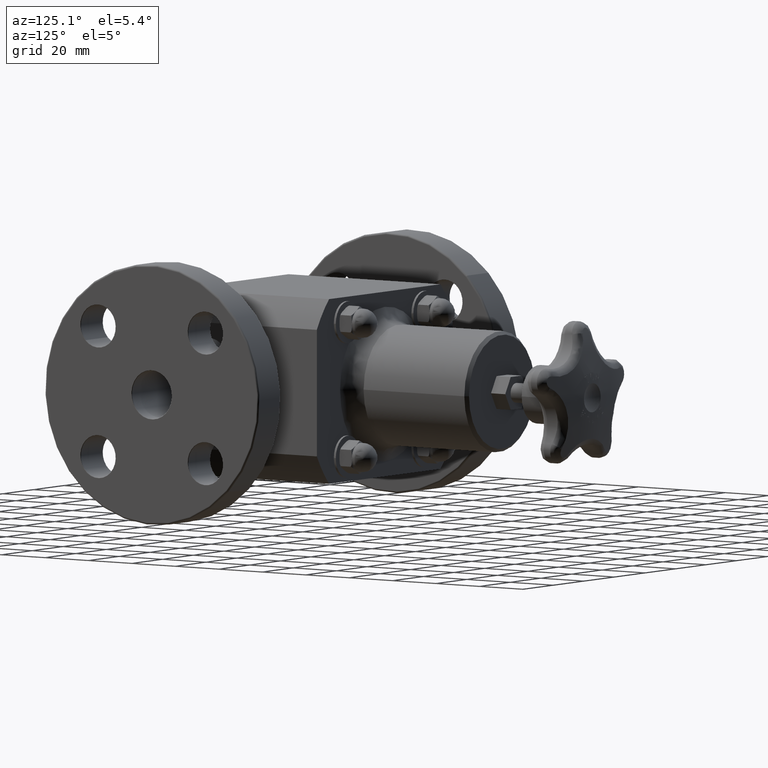
[diagram: clean part render]
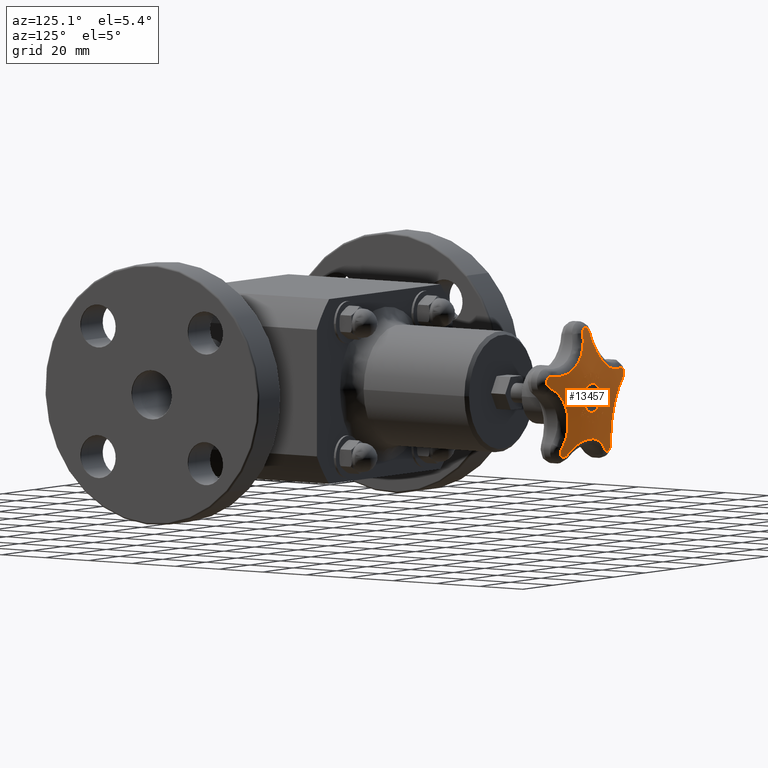
[diagram: same view with one face highlighted and labeled with its STEP entity id]
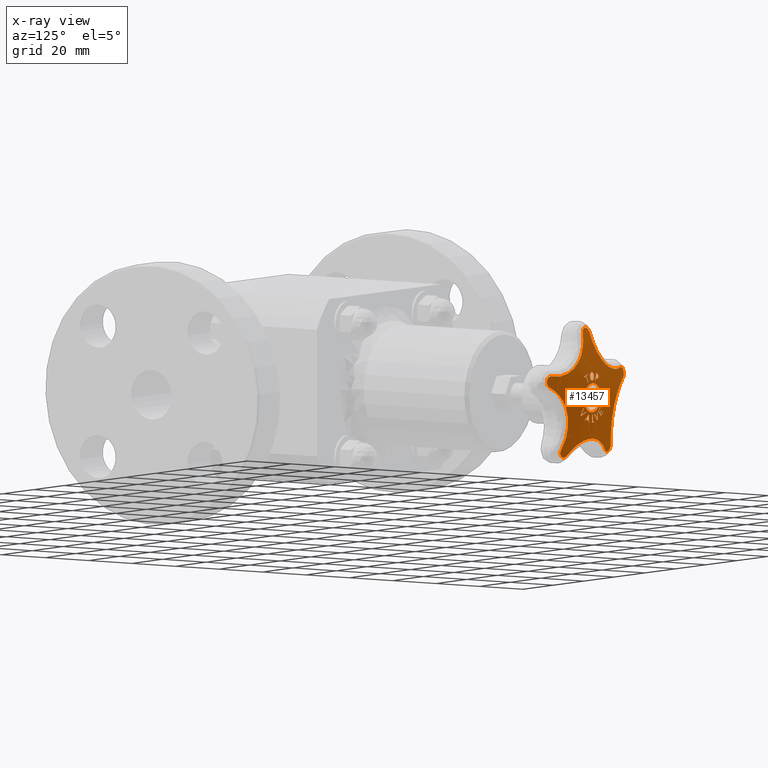
[diagram: x-ray of the same camera — body ghosted, the highlighted face saturated]
A machine part, auxiliary view. The second image highlights one B-rep face of the part: STEP entity #13457.
The next image is the same camera in x-ray: the body ghosted, the highlighted face saturated — about 0% of this face is hidden behind the body in this view.
In plain terms, the highlighted spherical surface has radius 101.6 mm.
Its self-contained STEP definition (entity closure, byte-faithful):
#10265=CARTESIAN_POINT('',(0.085862900185210,6.502578033837450,-0.334336098257463));
#10266=VERTEX_POINT('',#10265);
#10273=CARTESIAN_POINT('',(0.080862571524474,6.500070388788941,-0.364135061299997));
#10274=VERTEX_POINT('',#10273);
#10275=CARTESIAN_POINT('',(0.138077283113868,2.517500000000000,-0.023169658459773));
#10276=DIRECTION('',(0.986211736099962,-3.834945E-035,-0.165488403154721));
#10277=DIRECTION('',(0.165488403154721,2.285398E-034,0.986211736099962));
#10278=AXIS2_PLACEMENT_3D('',#10275,#10276,#10277);
#10279=CIRCLE('',#10278,3.997548977913186);
#10280=EDGE_CURVE('',#10274,#10266,#10279,.T.);
#10298=CARTESIAN_POINT('',(0.066931145986275,6.500560100352850,-0.361597094393902));
#10299=VERTEX_POINT('',#10298);
#10300=CARTESIAN_POINT('',(-0.061608234058828,2.517500000000000,-0.338180345563004));
#10301=DIRECTION('',(-0.179225881333302,0.0,-0.983807950496590));
#10302=DIRECTION('',(0.0,-1.0,0.0));
#10303=AXIS2_PLACEMENT_3D('',#10300,#10301,#10302);
#10304=CIRCLE('',#10303,3.985202438944732);
#10305=EDGE_CURVE('',#10299,#10274,#10304,.T.);
#10323=CARTESIAN_POINT('',(0.086359266902230,6.509345606544358,-0.240230577846814));
#10324=VERTEX_POINT('',#10323);
#10325=CARTESIAN_POINT('',(0.121696449326066,2.517500000000000,-0.019480935927100));
#10326=DIRECTION('',(-0.987428598717144,3.662935E-035,0.158065690254078));
#10327=DIRECTION('',(-0.158065690254078,-2.288218E-034,-0.987428598717144));
#10328=AXIS2_PLACEMENT_3D('',#10325,#10326,#10327);
#10329=CIRCLE('',#10328,3.998100857576862);
#10330=EDGE_CURVE('',#10324,#10299,#10329,.T.);
#10348=CARTESIAN_POINT('',(0.178491128782159,6.500560100243762,-0.321516958794137));
#10349=VERTEX_POINT('',#10348);
#10350=CARTESIAN_POINT('',(-0.081379549747352,2.517500000000000,-0.092237461550079));
#10351=DIRECTION('',(0.661592173204071,0.0,0.749863851879202));
#10352=DIRECTION('',(0.0,1.0,0.0));
#10353=AXIS2_PLACEMENT_3D('',#10350,#10351,#10352);
#10354=CIRCLE('',#10353,3.998108255108873);
#10355=EDGE_CURVE('',#10349,#10324,#10354,.T.);
#10391=CARTESIAN_POINT('',(0.169360113250167,6.500070388702393,-0.332340564889026));
#10392=VERTEX_POINT('',#10391);
#10393=CARTESIAN_POINT('',(0.262739148876333,2.517500000000000,-0.221652121134103));
#10394=DIRECTION('',(0.764340282334966,0.0,-0.644813099122609));
#10395=DIRECTION('',(0.0,-1.0,0.0));
#10396=AXIS2_PLACEMENT_3D('',#10393,#10394,#10395);
#10397=CIRCLE('',#10396,3.985202438627741);
#10398=EDGE_CURVE('',#10392,#10349,#10397,.T.);
#10416=CARTESIAN_POINT('',(0.146539084429404,6.502578033778149,-0.312536976105990));
#10417=VERTEX_POINT('',#10416);
#10418=CARTESIAN_POINT('',(-0.091762441742962,2.517500000000000,-0.105744133077216));
#10419=DIRECTION('',(-0.655409775395539,0.0,-0.755273477831686));
#10420=DIRECTION('',(0.0,-1.0,0.0));
#10421=AXIS2_PLACEMENT_3D('',#10418,#10419,#10420);
#10422=CIRCLE('',#10421,3.997548978137118);
#10423=EDGE_CURVE('',#10417,#10392,#10422,.T.);
#10441=CARTESIAN_POINT('',(0.116200988857743,2.517500000000000,-0.323436538421051));
#10442=DIRECTION('',(0.338111065893150,0.0,-0.941106214579735));
#10443=DIRECTION('',(0.0,-1.0,0.0));
#10444=AXIS2_PLACEMENT_3D('',#10441,#10442,#10443);
#10445=CIRCLE('',#10444,3.985208418113498);
#10446=EDGE_CURVE('',#10266,#10417,#10445,.T.);
#10476=CARTESIAN_POINT('',(0.037834369669133,6.508204436490725,0.269901206082852));
#10477=VERTEX_POINT('',#10476);
#10484=CARTESIAN_POINT('',(-0.000813251585510,6.509463335806678,0.253432563411025));
#10485=VERTEX_POINT('',#10484);
#10486=CARTESIAN_POINT('',(-0.000813251585510,6.509463335806678,0.253432563411025));
#10487=CARTESIAN_POINT('',(0.004822604549693,6.509463267161417,0.253451729844247));
#10488=CARTESIAN_POINT('',(0.010434056143418,6.509408968571550,0.254137147028971));
#10489=CARTESIAN_POINT('',(0.019829419967588,6.509191776701513,0.256945437338924));
#10490=CARTESIAN_POINT('',(0.023603879105451,6.509063271092423,0.258616838560289));
#10491=CARTESIAN_POINT('',(0.031162797321007,6.508707503911848,0.263275608997046));
#10492=CARTESIAN_POINT('',(0.034718544485055,6.508475224151669,0.266334166676061));
#10493=CARTESIAN_POINT('',(0.037834369669133,6.508204436490725,0.269901206082852));
#10494=B_SPLINE_CURVE_WITH_KNOTS('',3,(#10486,#10487,#10488,#10489,#10490,#10491,#10492,#10493),.UNSPECIFIED.,.F.,.U.,(4,2,2,4),(0.0,0.042945472093289,0.074729953679080,0.111130521126663),.UNSPECIFIED.);
#10495=EDGE_CURVE('',#10485,#10477,#10494,.T.);
#10528=CARTESIAN_POINT('',(0.051972176469609,6.504648590963244,0.316140801626154));
#10529=VERTEX_POINT('',#10528);
#10536=CARTESIAN_POINT('',(0.037834369669133,6.508204436490725,0.269901206082852));
#10537=CARTESIAN_POINT('',(0.041442739555291,6.507886429832899,0.274097371770597));
#10538=CARTESIAN_POINT('',(0.044216393332117,6.507526143654532,0.278867364485766));
#10539=CARTESIAN_POINT('',(0.051175872144373,6.506247534047898,0.295695352673442));
#10540=CARTESIAN_POINT('',(0.052000310715352,6.505304176149834,0.307867975918427));
#10541=CARTESIAN_POINT('',(0.051972176469609,6.504648590963244,0.316140801626154));
#10542=B_SPLINE_CURVE_WITH_KNOTS('',3,(#10536,#10537,#10538,#10539,#10540,#10541),.UNSPECIFIED.,.F.,.U.,(4,2,4),(0.0,0.042240697270331,0.139117363804144),.UNSPECIFIED.);
#10543=EDGE_CURVE('',#10477,#10529,#10542,.T.);
#10569=CARTESIAN_POINT('',(0.037422621985947,6.500875481075145,0.362380082417699));
#10570=VERTEX_POINT('',#10569);
#10577=CARTESIAN_POINT('',(0.051972176469609,6.504648590963244,0.316140801626154));
#10578=CARTESIAN_POINT('',(0.051955724861657,6.504265235014526,0.320978368143261));
#10579=CARTESIAN_POINT('',(0.051649887753166,6.503873160763518,0.325860197870603));
#10580=CARTESIAN_POINT('',(0.050134657362983,6.503046460787355,0.336059631335726));
#10581=CARTESIAN_POINT('',(0.048942330808374,6.502679768741239,0.340537076610657));
#10582=CARTESIAN_POINT('',(0.045132529339031,6.501814489793274,0.351068251626343));
#10583=CARTESIAN_POINT('',(0.041865078415884,6.501314249290124,0.357098260899483));
#10584=CARTESIAN_POINT('',(0.037422621985947,6.500875481075145,0.362380082417699));
#10585=B_SPLINE_CURVE_WITH_KNOTS('',3,(#10577,#10578,#10579,#10580,#10581,#10582,#10583,#10584),.UNSPECIFIED.,.F.,.U.,(4,2,2,4),(0.0,0.036978033263811,0.078812994269673,0.145814753845857),.UNSPECIFIED.);
#10586=EDGE_CURVE('',#10529,#10570,#10585,.T.);
#10614=CARTESIAN_POINT('',(-0.001238542349022,6.499552846207735,0.378488567887761));
#10615=VERTEX_POINT('',#10614);
#10622=CARTESIAN_POINT('',(0.037422621985947,6.500875481075145,0.362380082417699));
#10623=CARTESIAN_POINT('',(0.034954443929450,6.500644692501275,0.365171856276013));
#10624=CARTESIAN_POINT('',(0.032197988751061,6.500440415363388,0.367645041378230));
#10625=CARTESIAN_POINT('',(0.025433171661516,6.500054380883789,0.372335971569167));
#10626=CARTESIAN_POINT('',(0.021382576080450,6.499892027163672,0.374321631798851));
#10627=CARTESIAN_POINT('',(0.014161922593872,6.499697132621297,0.376716303028089));
#10628=CARTESIAN_POINT('',(0.011126297743766,6.499640822220748,0.377412789087582));
#10629=CARTESIAN_POINT('',(0.004967186895549,6.499568654773592,0.378304358121797));
#10630=CARTESIAN_POINT('',(0.001864839243269,6.499552808314178,0.378499121875412));
#10631=CARTESIAN_POINT('',(-0.001238542349022,6.499552846207735,0.378488567887761));
#10632=B_SPLINE_CURVE_WITH_KNOTS('',3,(#10622,#10623,#10624,#10625,#10626,#10627,#10628,#10629,#10630,#10631),.UNSPECIFIED.,.F.,.U.,(4,2,2,2,4),(0.0,0.028449418287417,0.062797366334246,0.086669104210055,0.110412733579470),.UNSPECIFIED.);
#10633=EDGE_CURVE('',#10570,#10615,#10632,.T.);
#10819=CARTESIAN_POINT('',(-0.039886494311880,6.500875481072099,0.362117169387378));
#10820=VERTEX_POINT('',#10819);
#10827=CARTESIAN_POINT('',(-0.001238542349022,6.499552846207735,0.378488567887761));
#10828=CARTESIAN_POINT('',(-0.006745334190295,6.499552913447912,0.378469840376704));
#10829=CARTESIAN_POINT('',(-0.012222719771290,6.499603190919958,0.377803010782852));
#10830=CARTESIAN_POINT('',(-0.022169110236763,6.499836259202795,0.374873454632416));
#10831=CARTESIAN_POINT('',(-0.025880772573739,6.499983982792515,0.373045650941543));
#10832=CARTESIAN_POINT('',(-0.032976239086434,6.500326456239561,0.368822005397033));
#10833=CARTESIAN_POINT('',(-0.036677483482774,6.500576120274295,0.365763676003977));
#10834=CARTESIAN_POINT('',(-0.039886494311880,6.500875481072101,0.362117169387378));
#10835=B_SPLINE_CURVE_WITH_KNOTS('',3,(#10827,#10828,#10829,#10830,#10831,#10832,#10833,#10834),.UNSPECIFIED.,.F.,.U.,(4,2,2,4),(0.0,0.041961996486355,0.079020325656231,0.132098515306939),.UNSPECIFIED.);
#10836=EDGE_CURVE('',#10615,#10820,#10835,.T.);
#10862=CARTESIAN_POINT('',(-0.054121214575585,6.504648590959069,0.315779998964419));
#10863=VERTEX_POINT('',#10862);
#10870=CARTESIAN_POINT('',(-0.039886494311880,6.500875481072099,0.362117169387378));
#10871=CARTESIAN_POINT('',(-0.043384531614640,6.501215540252460,0.357991135129826));
#10872=CARTESIAN_POINT('',(-0.046110522559888,6.501601304155912,0.353327026506887));
#10873=CARTESIAN_POINT('',(-0.049655140330850,6.502287322165349,0.344989572698873));
#10874=CARTESIAN_POINT('',(-0.051408401706369,6.502680648419752,0.340203251638015));
#10875=CARTESIAN_POINT('',(-0.053714336300565,6.503694761028934,0.327721858865083));
#10876=CARTESIAN_POINT('',(-0.054141415064118,6.504177878462816,0.321719917253611));
#10877=CARTESIAN_POINT('',(-0.054121214575585,6.504648590959070,0.315779998964419));
#10878=B_SPLINE_CURVE_WITH_KNOTS('',3,(#10870,#10871,#10872,#10873,#10874,#10875,#10876,#10877),.UNSPECIFIED.,.F.,.U.,(4,2,2,4),(0.0,0.041300163745689,0.069239721804254,0.093823977580811),.UNSPECIFIED.);
#10879=EDGE_CURVE('',#10820,#10863,#10878,.T.);
#10905=CARTESIAN_POINT('',(-0.039571990800138,6.508205379604829,0.269637962344318));
#10906=VERTEX_POINT('',#10905);
#10913=CARTESIAN_POINT('',(-0.054121214575585,6.504648590959070,0.315779998964419));
#10914=CARTESIAN_POINT('',(-0.054104973183963,6.505027048439477,0.311004246190809));
#10915=CARTESIAN_POINT('',(-0.053791585087129,6.505402200783876,0.306211457940531));
#10916=CARTESIAN_POINT('',(-0.052375519715095,6.506143410979319,0.296655576028873));
#10917=CARTESIAN_POINT('',(-0.051258684496629,6.506507467278865,0.291916990166382));
#10918=CARTESIAN_POINT('',(-0.047377403862622,6.507352193214818,0.280860112488070));
#10919=CARTESIAN_POINT('',(-0.044132654634130,6.507811607413358,0.274796561836271));
#10920=CARTESIAN_POINT('',(-0.039571990800138,6.508205379604829,0.269637962344318));
#10921=B_SPLINE_CURVE_WITH_KNOTS('',3,(#10913,#10914,#10915,#10916,#10917,#10918,#10919,#10920),.UNSPECIFIED.,.F.,.U.,(4,2,2,4),(0.0,0.036505533163791,0.073822024429602,0.126837533468264),.UNSPECIFIED.);
#10922=EDGE_CURVE('',#10863,#10906,#10921,.T.);
#10949=CARTESIAN_POINT('',(-0.039571990800138,6.508205379604828,0.269637962344318));
#10950=CARTESIAN_POINT('',(-0.036994618978134,6.508426649193219,0.266741374653484));
#10951=CARTESIAN_POINT('',(-0.034125944551200,6.508624226597591,0.264155087526020));
#10952=CARTESIAN_POINT('',(-0.028127958870894,6.508941902899274,0.260022999604724));
#10953=CARTESIAN_POINT('',(-0.024119800176987,6.509119835051820,0.257727462092390));
#10954=CARTESIAN_POINT('',(-0.015614631027444,6.509330482346445,0.255058899401250));
#10955=CARTESIAN_POINT('',(-0.012615830697533,6.509382732516450,0.254406267976287));
#10956=CARTESIAN_POINT('',(-0.006666959610789,6.509448427235687,0.253597873925736));
#10957=CARTESIAN_POINT('',(-0.003741704705224,6.509463371475511,0.253422604320576));
#10958=CARTESIAN_POINT('',(-0.000813251586146,6.509463335806677,0.253432563411023));
#10959=B_SPLINE_CURVE_WITH_KNOTS('',3,(#10949,#10950,#10951,#10952,#10953,#10954,#10955,#10956,#10957,#10958),.UNSPECIFIED.,.F.,.U.,(4,2,2,2,4),(0.0,0.029592715149351,0.055552496815722,0.069221283901438,0.082236559754027),.UNSPECIFIED.);
#10960=EDGE_CURVE('',#10906,#10485,#10959,.T.);
#11234=CARTESIAN_POINT('',(-0.247118300170065,6.504930202010447,-0.198325313099392));
#11235=VERTEX_POINT('',#11234);
#11242=CARTESIAN_POINT('',(-0.207827658530653,6.505059962457522,-0.237008882018031));
#11243=VERTEX_POINT('',#11242);
#11244=CARTESIAN_POINT('',(-0.220785948703935,2.517500000000000,-0.224250808083116));
#11245=DIRECTION('',(0.701580297701931,0.0,0.712590405405847));
#11246=DIRECTION('',(0.0,1.0,0.0));
#11247=AXIS2_PLACEMENT_3D('',#11244,#11245,#11246);
#11248=CIRCLE('',#11247,3.987601426914302);
#11249=EDGE_CURVE('',#11243,#11235,#11248,.T.);
#11267=CARTESIAN_POINT('',(-0.176580613442933,6.508324840990898,-0.205271467783727));
#11268=VERTEX_POINT('',#11267);
#11269=CARTESIAN_POINT('',(0.012958290173282,2.517500000000000,-0.012758073934915));
#11270=DIRECTION('',(-0.712590405405847,0.0,0.701580297701931));
#11271=DIRECTION('',(0.0,1.0,0.0));
#11272=AXIS2_PLACEMENT_3D('',#11269,#11270,#11271);
#11273=CIRCLE('',#11272,3.999958664069575);
#11274=EDGE_CURVE('',#11268,#11243,#11273,.T.);
#11292=CARTESIAN_POINT('',(-0.218712377317294,6.508156275729467,-0.163790674304833));
#11293=VERTEX_POINT('',#11292);
#11294=CARTESIAN_POINT('',(-0.189538903616215,2.517500000000000,-0.192513393848812));
#11295=DIRECTION('',(-0.701580297701931,0.0,-0.712590405405848));
#11296=DIRECTION('',(0.0,-1.0,0.0));
#11297=AXIS2_PLACEMENT_3D('',#11294,#11295,#11296);
#11298=CIRCLE('',#11297,3.990866271526118);
#11299=EDGE_CURVE('',#11293,#11268,#11298,.T.);
#11317=CARTESIAN_POINT('',(-0.208751528883217,6.509092069880929,-0.153673507321845));
#11318=VERTEX_POINT('',#11317);
#11319=CARTESIAN_POINT('',(-0.029173473701079,2.517500000000000,0.028722719543979));
#11320=DIRECTION('',(-0.712590405405848,0.0,0.701580297701931));
#11321=DIRECTION('',(0.0,1.0,0.0));
#11322=AXIS2_PLACEMENT_3D('',#11319,#11320,#11321);
#11323=CIRCLE('',#11322,3.999790483739644);
#11324=EDGE_CURVE('',#11318,#11293,#11323,.T.);
#11342=CARTESIAN_POINT('',(-0.155255276069062,6.509156082813489,-0.206343199041756));
#11343=VERTEX_POINT('',#11342);
#11344=CARTESIAN_POINT('',(-0.179578055182139,2.517500000000000,-0.182396226865824));
#11345=DIRECTION('',(0.701580297701931,0.0,0.712590405405847));
#11346=DIRECTION('',(0.0,1.0,0.0));
#11347=AXIS2_PLACEMENT_3D('',#11344,#11345,#11346);
#11348=CIRCLE('',#11347,3.991802016448476);
#11349=EDGE_CURVE('',#11343,#11318,#11348,.T.);
#11367=CARTESIAN_POINT('',(-0.239444912833791,6.499646073155508,-0.291854048747284));
#11368=VERTEX_POINT('',#11367);
#11369=CARTESIAN_POINT('',(0.024322779113076,2.517500000000000,-0.023946972175932));
#11370=DIRECTION('',(0.712590405405848,0.0,-0.701580297701931));
#11371=DIRECTION('',(0.0,-1.0,0.0));
#11372=AXIS2_PLACEMENT_3D('',#11369,#11370,#11371);
#11373=CIRCLE('',#11372,3.999854365466301);
#11374=EDGE_CURVE('',#11368,#11343,#11373,.T.);
#11392=CARTESIAN_POINT('',(-0.292941165647946,6.499581907347238,-0.239184357027373));
#11393=VERTEX_POINT('',#11392);
#11394=CARTESIAN_POINT('',(-0.263767691946868,2.517500000000000,-0.267907076571351));
#11395=DIRECTION('',(-0.701580297701931,0.0,-0.712590405405847));
#11396=DIRECTION('',(0.0,-1.0,0.0));
#11397=AXIS2_PLACEMENT_3D('',#11394,#11395,#11396);
#11398=CIRCLE('',#11397,3.982292355290859);
#11399=EDGE_CURVE('',#11393,#11368,#11398,.T.);
#11417=CARTESIAN_POINT('',(-0.282980317213870,6.500896837187415,-0.229067190044385));
#11418=VERTEX_POINT('',#11417);
#11419=CARTESIAN_POINT('',(-0.029173473701079,2.517500000000000,0.028722719543979));
#11420=DIRECTION('',(-0.712590405405848,0.0,0.701580297701931));
#11421=DIRECTION('',(0.0,1.0,0.0));
#11422=AXIS2_PLACEMENT_3D('',#11419,#11420,#11421);
#11423=CIRCLE('',#11422,3.999790483739644);
#11424=EDGE_CURVE('',#11418,#11393,#11423,.T.);
#11442=CARTESIAN_POINT('',(-0.240848553339509,6.501065709633236,-0.270547983523279));
#11443=VERTEX_POINT('',#11442);
#11444=CARTESIAN_POINT('',(-0.253806843512791,2.517500000000000,-0.257789909588363));
#11445=DIRECTION('',(0.701580297701931,0.0,0.712590405405847));
#11446=DIRECTION('',(0.0,1.0,0.0));
#11447=AXIS2_PLACEMENT_3D('',#11444,#11445,#11446);
#11448=CIRCLE('',#11447,3.983607215665281);
#11449=EDGE_CURVE('',#11443,#11418,#11448,.T.);
#11467=CARTESIAN_POINT('',(-0.217788506964729,6.503914037971874,-0.247126049001019));
#11468=VERTEX_POINT('',#11467);
#11469=CARTESIAN_POINT('',(0.012958290173281,2.517500000000000,-0.012758073934915));
#11470=DIRECTION('',(-0.712590405405848,0.0,0.701580297701930));
#11471=DIRECTION('',(0.0,1.0,0.0));
#11472=AXIS2_PLACEMENT_3D('',#11469,#11470,#11471);
#11473=CIRCLE('',#11472,3.999958664069575);
#11474=EDGE_CURVE('',#11468,#11443,#11473,.T.);
#11492=CARTESIAN_POINT('',(-0.257079148604141,6.503784240222976,-0.208442480082380));
#11493=VERTEX_POINT('',#11492);
#11494=CARTESIAN_POINT('',(-0.230746797138011,2.517500000000000,-0.234367975066104));
#11495=DIRECTION('',(-0.701580297701931,0.0,-0.712590405405848));
#11496=DIRECTION('',(0.0,-1.0,0.0));
#11497=AXIS2_PLACEMENT_3D('',#11494,#11495,#11496);
#11498=CIRCLE('',#11497,3.986455514347798);
#11499=EDGE_CURVE('',#11493,#11468,#11498,.T.);
#11517=CARTESIAN_POINT('',(-0.026332351466130,2.517500000000000,0.025925494983725));
#11518=DIRECTION('',(-0.712590405405848,0.0,0.701580297701931));
#11519=DIRECTION('',(0.0,1.0,0.0));
#11520=AXIS2_PLACEMENT_3D('',#11517,#11518,#11519);
#11521=CIRCLE('',#11520,3.999829305854953);
#11522=EDGE_CURVE('',#11235,#11493,#11521,.T.);
#11544=CARTESIAN_POINT('',(0.104679989358764,6.499501420719623,0.364289425065761));
#11545=VERTEX_POINT('',#11544);
#11552=CARTESIAN_POINT('',(0.193260657033255,6.499499064924952,0.326088585172621));
#11553=VERTEX_POINT('',#11552);
#11554=CARTESIAN_POINT('',(0.148881029224559,2.517500000000000,0.345227513574776));
#11555=DIRECTION('',(0.395999965100261,0.0,0.918250525532435));
#11556=DIRECTION('',(0.0,1.0,0.0));
#11557=AXIS2_PLACEMENT_3D('',#11554,#11555,#11556);
#11558=CIRCLE('',#11557,3.982292355290859);
#11559=EDGE_CURVE('',#11553,#11545,#11558,.T.);
#11584=CARTESIAN_POINT('',(0.099057688326104,6.500816377129186,0.351252350992701));
#11585=VERTEX_POINT('',#11584);
#11592=CARTESIAN_POINT('',(-0.044201039865794,2.517500000000000,0.019061911490985));
#11593=DIRECTION('',(-0.918250525532435,9.176705E-035,0.395999965100260));
#11594=DIRECTION('',(-0.395999965100260,-2.127908E-034,-0.918250525532435));
#11595=AXIS2_PLACEMENT_3D('',#11592,#11593,#11594);
#11596=CIRCLE('',#11595,3.999710353463748);
#11597=EDGE_CURVE('',#11545,#11585,#11596,.T.);
#11617=CARTESIAN_POINT('',(0.136025829875741,6.501099428197435,0.335309661763104));
#11618=VERTEX_POINT('',#11617);
#11625=CARTESIAN_POINT('',(0.143258728191899,2.517500000000000,0.332190439501716));
#11626=DIRECTION('',(-0.395999965100261,0.0,-0.918250525532434));
#11627=DIRECTION('',(0.0,-1.0,0.0));
#11628=AXIS2_PLACEMENT_3D('',#11625,#11626,#11627);
#11629=CIRCLE('',#11628,3.983607215665281);
#11630=EDGE_CURVE('',#11585,#11618,#11629,.T.);
#11650=CARTESIAN_POINT('',(0.094128134509071,6.509294244967611,0.238156671410437));
#11651=VERTEX_POINT('',#11650);
#11658=CARTESIAN_POINT('',(-0.007232898316159,2.517500000000000,0.003119222261389));
#11659=DIRECTION('',(-0.918250525532435,9.176705E-035,0.395999965100261));
#11660=DIRECTION('',(-0.395999965100261,-2.127908E-034,-0.918250525532435));
#11661=AXIS2_PLACEMENT_3D('',#11658,#11659,#11660);
#11662=CIRCLE('',#11661,3.999992244446786);
#11663=EDGE_CURVE('',#11618,#11651,#11662,.T.);
#11683=CARTESIAN_POINT('',(0.108772519084289,6.509293856457106,0.231841209976490));
#11684=VERTEX_POINT('',#11683);
#11691=CARTESIAN_POINT('',(0.101361032825229,2.517500000000000,0.235037449149048));
#11692=DIRECTION('',(-0.395999965100260,0.0,-0.918250525532435));
#11693=DIRECTION('',(0.0,-1.0,0.0));
#11694=AXIS2_PLACEMENT_3D('',#11691,#11692,#11693);
#11695=CIRCLE('',#11694,3.991802016448476);
#11696=EDGE_CURVE('',#11651,#11684,#11695,.T.);
#11716=CARTESIAN_POINT('',(0.150670214450959,6.501099038887709,0.328994200329158));
#11717=VERTEX_POINT('',#11716);
#11724=CARTESIAN_POINT('',(0.007411486259060,2.517500000000000,-0.003196239172558));
#11725=DIRECTION('',(0.918250525532434,-9.176705E-035,-0.395999965100261));
#11726=DIRECTION('',(0.395999965100261,2.127908E-034,0.918250525532434));
#11727=AXIS2_PLACEMENT_3D('',#11724,#11725,#11726);
#11728=CIRCLE('',#11727,3.999991856732535);
#11729=EDGE_CURVE('',#11684,#11717,#11728,.T.);
#11749=CARTESIAN_POINT('',(0.187638356000595,6.500814022112200,0.313051511099561));
#11750=VERTEX_POINT('',#11749);
#11757=CARTESIAN_POINT('',(0.143258728191899,2.517500000000000,0.332190439501716));
#11758=DIRECTION('',(-0.395999965100261,0.0,-0.918250525532435));
#11759=DIRECTION('',(0.0,-1.0,0.0));
#11760=AXIS2_PLACEMENT_3D('',#11757,#11758,#11759);
#11761=CIRCLE('',#11760,3.983607215665281);
#11762=EDGE_CURVE('',#11717,#11750,#11761,.T.);
#11781=CARTESIAN_POINT('',(0.044379627808697,2.517500000000000,-0.019138928402155));
#11782=DIRECTION('',(0.918250525532435,-9.176705E-035,-0.395999965100259));
#11783=DIRECTION('',(0.395999965100259,2.127908E-034,0.918250525532435));
#11784=AXIS2_PLACEMENT_3D('',#11781,#11782,#11783);
#11785=CIRCLE('',#11784,3.999708008099489);
#11786=EDGE_CURVE('',#11750,#11553,#11785,.T.);
#11885=CARTESIAN_POINT('',(-0.132776476717596,6.509152316888535,-0.221545002897484));
#11886=VERTEX_POINT('',#11885);
#11893=CARTESIAN_POINT('',(-0.141106922486270,6.501658741024817,-0.326447488490870));
#11894=VERTEX_POINT('',#11893);
#11895=CARTESIAN_POINT('',(-0.114461481346885,2.517500000000000,0.009089538322841));
#11896=DIRECTION('',(0.996861755361221,-1.834463E-035,-0.079162116559279));
#11897=DIRECTION('',(0.079162116559279,2.310078E-034,0.996861755361221));
#11898=AXIS2_PLACEMENT_3D('',#11895,#11896,#11897);
#11899=CIRCLE('',#11898,3.998351654067081);
#11900=EDGE_CURVE('',#11894,#11886,#11899,.T.);
#11918=CARTESIAN_POINT('',(-0.071391562909479,6.509171847508763,-0.247909472492114));
#11919=VERTEX_POINT('',#11918);
#11920=CARTESIAN_POINT('',(0.083150511259561,2.517500000000000,-0.073809704991097));
#11921=DIRECTION('',(-0.747864056465855,0.0,0.663851905959784));
#11922=DIRECTION('',(0.0,1.0,0.0));
#11923=AXIS2_PLACEMENT_3D('',#11920,#11921,#11922);
#11924=CIRCLE('',#11923,3.998454466406539);
#11925=EDGE_CURVE('',#11919,#11894,#11924,.T.);
#11943=CARTESIAN_POINT('',(-0.055754940032594,6.508998131883168,-0.254625312636306));
#11944=VERTEX_POINT('',#11943);
#11945=CARTESIAN_POINT('',(-0.101011795140334,2.517500000000000,-0.235187752062933));
#11946=DIRECTION('',(0.394635554071923,0.0,0.918837732933485));
#11947=DIRECTION('',(0.0,1.0,0.0));
#11948=AXIS2_PLACEMENT_3D('',#11945,#11946,#11947);
#11949=CIRCLE('',#11948,3.991802016448476);
#11950=EDGE_CURVE('',#11944,#11919,#11949,.T.);
#11968=CARTESIAN_POINT('',(-0.140907158403200,6.499784076964297,-0.348652696916783));
#11969=VERTEX_POINT('',#11968);
#11970=CARTESIAN_POINT('',(0.096057099062329,2.517500000000000,-0.086990350077203));
#11971=DIRECTION('',(0.741222642945153,0.0,-0.671259259590065));
#11972=DIRECTION('',(0.0,-1.0,0.0));
#11973=AXIS2_PLACEMENT_3D('',#11970,#11971,#11972);
#11974=CIRCLE('',#11973,3.997900162924680);
#11975=EDGE_CURVE('',#11969,#11944,#11974,.T.);
#11993=CARTESIAN_POINT('',(-0.156722485541535,6.499781975401069,-0.341860104313799));
#11994=VERTEX_POINT('',#11993);
#11995=CARTESIAN_POINT('',(-0.148368062214240,2.517500000000000,-0.345448281377657));
#11996=DIRECTION('',(-0.394635554071924,0.0,-0.918837732933484));
#11997=DIRECTION('',(0.0,-1.0,0.0));
#11998=AXIS2_PLACEMENT_3D('',#11995,#11996,#11997);
#11999=CIRCLE('',#11998,3.982292355290859);
#12000=EDGE_CURVE('',#11994,#11969,#11999,.T.);
#12018=CARTESIAN_POINT('',(-0.147698282548681,6.508978628851239,-0.215136172588455));
#12019=VERTEX_POINT('',#12018);
#12020=CARTESIAN_POINT('',(-0.131710197155650,2.517500000000000,0.009379282501569));
#12021=DIRECTION('',(-0.997474063033574,1.646052E-035,0.071031637847470));
#12022=DIRECTION('',(-0.071031637847470,-2.311497E-034,-0.997474063033574));
#12023=AXIS2_PLACEMENT_3D('',#12020,#12021,#12022);
#12024=CIRCLE('',#12023,3.997819962557716);
#12025=EDGE_CURVE('',#12019,#11994,#12024,.T.);
#12043=CARTESIAN_POINT('',(-0.101011795140334,2.517500000000000,-0.235187752062933));
#12044=DIRECTION('',(0.394635554071923,0.0,0.918837732933485));
#12045=DIRECTION('',(0.0,1.0,0.0));
#12046=AXIS2_PLACEMENT_3D('',#12043,#12044,#12045);
#12047=CIRCLE('',#12046,3.991802016448476);
#12048=EDGE_CURVE('',#11886,#12019,#12047,.T.);
#12070=CARTESIAN_POINT('',(-0.069865805707577,6.509162659387478,0.248491414025747));
#12071=VERTEX_POINT('',#12070);
#12078=CARTESIAN_POINT('',(-0.084532147717997,6.509264063873195,0.242227113207306));
#12079=VERTEX_POINT('',#12078);
#12080=CARTESIAN_POINT('',(-0.100539922146019,2.517500000000000,0.235389858602194));
#12081=DIRECTION('',(0.392792028171763,0.0,-0.919627328108899));
#12082=DIRECTION('',(0.0,-1.0,0.0));
#12083=AXIS2_PLACEMENT_3D('',#12080,#12081,#12082);
#12084=CIRCLE('',#12083,3.991802016448476);
#12085=EDGE_CURVE('',#12079,#12071,#12084,.T.);
#12110=CARTESIAN_POINT('',(-0.117000849670729,6.499652665435394,0.358846694762692));
#12111=VERTEX_POINT('',#12110);
#12118=CARTESIAN_POINT('',(0.030674116438442,2.517500000000000,0.013101555423553));
#12119=DIRECTION('',(0.919627328108900,9.102366E-035,0.392792028171762));
#12120=DIRECTION('',(-0.392792028171762,2.131098E-034,0.919627328108900));
#12121=AXIS2_PLACEMENT_3D('',#12118,#12119,#12120);
#12122=CIRCLE('',#12121,3.999860928560668);
#12123=EDGE_CURVE('',#12071,#12111,#12122,.T.);
#12143=CARTESIAN_POINT('',(-0.144723813227012,6.499791062296547,0.347005638337589));
#12144=VERTEX_POINT('',#12143);
#12151=CARTESIAN_POINT('',(-0.147674966109171,2.517500000000000,0.345745139339140));
#12152=DIRECTION('',(-0.392792028171761,0.0,0.919627328108900));
#12153=DIRECTION('',(0.0,1.0,0.0));
#12154=AXIS2_PLACEMENT_3D('',#12151,#12152,#12153);
#12155=CIRCLE('',#12154,3.982292355290859);
#12156=EDGE_CURVE('',#12111,#12144,#12155,.T.);
#12182=CARTESIAN_POINT('',(-0.170668187046194,6.500392332671243,0.327781995050035));
#12183=VERTEX_POINT('',#12182);
#12190=CARTESIAN_POINT('',(-0.144723813227012,6.499791062296545,0.347005638337589));
#12191=CARTESIAN_POINT('',(-0.150088261328737,6.499795762969324,0.344714370575645));
#12192=CARTESIAN_POINT('',(-0.155816045050092,6.499823287565298,0.341843284165149));
#12193=CARTESIAN_POINT('',(-0.163386369744122,6.499985173854674,0.336346581494136));
#12194=CARTESIAN_POINT('',(-0.167427829443181,6.500105667536205,0.332952450875757));
#12195=CARTESIAN_POINT('',(-0.170668187046194,6.500392332671243,0.327781995050034));
#12196=B_SPLINE_CURVE_WITH_KNOTS('',3,(#12190,#12191,#12192,#12193,#12194,#12195),.UNSPECIFIED.,.F.,.U.,(4,2,4),(0.0,0.044449644500484,0.071079555324561),.UNSPECIFIED.);
#12197=EDGE_CURVE('',#12144,#12183,#12196,.T.);
#12369=CARTESIAN_POINT('',(-0.172546135424801,6.502815390487377,0.295785512651346));
#12370=VERTEX_POINT('',#12369);
#12377=CARTESIAN_POINT('',(-0.170668187046194,6.500392332671245,0.327781995050035));
#12378=CARTESIAN_POINT('',(-0.172986087574699,6.500591167831978,0.324159065981219));
#12379=CARTESIAN_POINT('',(-0.174567491806915,6.500838750576291,0.320245416315975));
#12380=CARTESIAN_POINT('',(-0.176129629330600,6.501442814318248,0.311764074180629));
#12381=CARTESIAN_POINT('',(-0.175887094211243,6.501718772794618,0.308335133779387));
#12382=CARTESIAN_POINT('',(-0.175001277294207,6.502211349698702,0.302427671544135));
#12383=CARTESIAN_POINT('',(-0.173928522803411,6.502515328212925,0.299022037632058));
#12384=CARTESIAN_POINT('',(-0.172546135424801,6.502815390487375,0.295785512651346));
#12385=B_SPLINE_CURVE_WITH_KNOTS('',3,(#12377,#12378,#12379,#12380,#12381,#12382,#12383,#12384),.UNSPECIFIED.,.F.,.U.,(4,2,2,4),(0.0,0.032808337471925,0.065876100718766,0.113361042324126),.UNSPECIFIED.);
#12386=EDGE_CURVE('',#12183,#12370,#12385,.T.);
#12414=CARTESIAN_POINT('',(-0.152421846635908,6.505095568897899,0.275407261294860));
#12415=VERTEX_POINT('',#12414);
#12422=CARTESIAN_POINT('',(-0.172546135424801,6.502815390487376,0.295785512651346));
#12423=CARTESIAN_POINT('',(-0.171321928932305,6.503081117873359,0.292919329875214));
#12424=CARTESIAN_POINT('',(-0.169804261392693,6.503343863950836,0.290215418914447));
#12425=CARTESIAN_POINT('',(-0.165910493783782,6.503891779064992,0.284897251377497));
#12426=CARTESIAN_POINT('',(-0.163657217073227,6.504148699667298,0.282590003201546));
#12427=CARTESIAN_POINT('',(-0.158684575838191,6.504639217410809,0.278482510744070));
#12428=CARTESIAN_POINT('',(-0.155702157987997,6.504881831002916,0.276686491070645));
#12429=CARTESIAN_POINT('',(-0.152421846635908,6.505095568897900,0.275407261294860));
#12430=B_SPLINE_CURVE_WITH_KNOTS('',3,(#12422,#12423,#12424,#12425,#12426,#12427,#12428,#12429),.UNSPECIFIED.,.F.,.U.,(4,2,2,4),(0.0,0.023835253161564,0.050398261842090,0.082258015573386),.UNSPECIFIED.);
#12431=EDGE_CURVE('',#12370,#12415,#12430,.T.);
#12459=CARTESIAN_POINT('',(-0.114533366717580,6.506179920008204,0.278055037055050));
#12460=VERTEX_POINT('',#12459);
#12467=CARTESIAN_POINT('',(-0.152421846635908,6.505095568897900,0.275407261294860));
#12468=CARTESIAN_POINT('',(-0.149545358874606,6.505283458798842,0.274278789378133));
#12469=CARTESIAN_POINT('',(-0.146578636591112,6.505448267506802,0.273482909697010));
#12470=CARTESIAN_POINT('',(-0.136733843929597,6.505902980470307,0.272015981091797));
#12471=CARTESIAN_POINT('',(-0.131190118846058,6.506021826509043,0.272931617342636));
#12472=CARTESIAN_POINT('',(-0.123610109338991,6.506155761130769,0.274533252414456));
#12473=CARTESIAN_POINT('',(-0.118915137061145,6.506184566599571,0.276183491476070));
#12474=CARTESIAN_POINT('',(-0.114533366717580,6.506179920008204,0.278055037055050));
#12475=B_SPLINE_CURVE_WITH_KNOTS('',3,(#12467,#12468,#12469,#12470,#12471,#12472,#12473,#12474),.UNSPECIFIED.,.F.,.U.,(4,2,2,4),(0.0,0.023588710723971,0.075924731072629,0.159708716541644),.UNSPECIFIED.);
#12476=EDGE_CURVE('',#12415,#12460,#12475,.T.);
#12496=CARTESIAN_POINT('',(-0.102102747574602,6.506143834417175,0.283364413968241));
#12497=VERTEX_POINT('',#12496);
#12504=CARTESIAN_POINT('',(-0.118110522002624,2.517500000000000,0.276527159363130));
#12505=DIRECTION('',(0.392792028171763,0.0,-0.919627328108899));
#12506=DIRECTION('',(0.0,-1.0,0.0));
#12507=AXIS2_PLACEMENT_3D('',#12504,#12505,#12506);
#12508=CIRCLE('',#12507,3.988681816681650);
#12509=EDGE_CURVE('',#12460,#12497,#12508,.T.);
#12528=CARTESIAN_POINT('',(0.016007774428021,2.517500000000000,0.006837254605111));
#12529=DIRECTION('',(-0.919627328108900,-9.102366E-035,-0.392792028171761));
#12530=DIRECTION('',(0.392792028171761,-2.131098E-034,-0.919627328108900));
#12531=AXIS2_PLACEMENT_3D('',#12528,#12529,#12530);
#12532=CIRCLE('',#12531,3.999962125209104);
#12533=EDGE_CURVE('',#12497,#12079,#12532,.T.);
#12764=CARTESIAN_POINT('',(-0.025446717491280,6.501118720077397,-0.360741399922220));
#12765=VERTEX_POINT('',#12764);
#12772=CARTESIAN_POINT('',(-0.015977407253327,6.509295876022474,-0.255559008112469));
#12773=VERTEX_POINT('',#12772);
#12774=CARTESIAN_POINT('',(0.006973418085276,2.517500000000000,-0.000627799559719));
#12775=DIRECTION('',(-0.995971991168664,2.077849E-035,0.089664891722048));
#12776=DIRECTION('',(-0.089664891722048,-2.308016E-034,-0.995971991168664));
#12777=AXIS2_PLACEMENT_3D('',#12774,#12775,#12776);
#12778=CIRCLE('',#12777,3.999993872158797);
#12779=EDGE_CURVE('',#12773,#12765,#12778,.T.);
#12797=CARTESIAN_POINT('',(-0.003483366237252,6.509254161384002,-0.256683815682170));
#12798=VERTEX_POINT('',#12797);
#12799=CARTESIAN_POINT('',(-0.022950825338604,2.517500000000000,-0.254931208552749));
#12800=DIRECTION('',(0.089664891722049,0.0,0.995971991168664));
#12801=DIRECTION('',(0.0,1.0,0.0));
#12802=AXIS2_PLACEMENT_3D('',#12799,#12800,#12801);
#12803=CIRCLE('',#12802,3.991802016448476);
#12804=EDGE_CURVE('',#12798,#12773,#12803,.T.);
#12822=CARTESIAN_POINT('',(-0.014077484044906,6.499918389468890,-0.374360248507997));
#12823=VERTEX_POINT('',#12822);
#12824=CARTESIAN_POINT('',(0.019467459101352,2.517500000000000,-0.001752607129421));
#12825=DIRECTION('',(0.995971991168664,-2.077849E-035,-0.089664891722048));
#12826=DIRECTION('',(0.089664891722048,2.308016E-034,0.995971991168664));
#12827=AXIS2_PLACEMENT_3D('',#12824,#12825,#12826);
#12828=CIRCLE('',#12827,3.999952243015458);
#12829=EDGE_CURVE('',#12823,#12798,#12828,.T.);
#12847=CARTESIAN_POINT('',(-0.053012402560118,6.499918389467350,-0.370855034221020));
#12848=VERTEX_POINT('',#12847);
#12849=CARTESIAN_POINT('',(-0.033544943146258,2.517500000000000,-0.372607641378576));
#12850=DIRECTION('',(-0.089664891722049,0.0,-0.995971991168664));
#12851=DIRECTION('',(0.0,-1.0,0.0));
#12852=AXIS2_PLACEMENT_3D('',#12849,#12850,#12851);
#12853=CIRCLE('',#12852,3.982466356716100);
#12854=EDGE_CURVE('',#12848,#12823,#12853,.T.);
#12872=CARTESIAN_POINT('',(-0.051887594990416,6.501076919809040,-0.358360993204945));
#12873=VERTEX_POINT('',#12872);
#12874=CARTESIAN_POINT('',(-0.019467459413860,2.517500000000000,0.001752607157556));
#12875=DIRECTION('',(-0.995971991168664,2.077849E-035,0.089664891722049));
#12876=DIRECTION('',(-0.089664891722049,-2.308016E-034,-0.995971991168664));
#12877=AXIS2_PLACEMENT_3D('',#12874,#12875,#12876);
#12878=CIRCLE('',#12877,3.999952243013925);
#12879=EDGE_CURVE('',#12873,#12848,#12878,.T.);
#12897=CARTESIAN_POINT('',(-0.032420135576556,2.517500000000000,-0.360113600362501));
#12898=DIRECTION('',(0.089664891722049,0.0,0.995971991168664));
#12899=DIRECTION('',(0.0,1.0,0.0));
#12900=AXIS2_PLACEMENT_3D('',#12897,#12898,#12899);
#12901=CIRCLE('',#12900,3.983624873107803);
#12902=EDGE_CURVE('',#12765,#12873,#12901,.T.);
#12924=CARTESIAN_POINT('',(0.158721080860086,6.508978628851239,-0.207137572435436));
#12925=VERTEX_POINT('',#12924);
#12932=CARTESIAN_POINT('',(0.169441733074488,6.509152316888535,-0.194939170438110));
#12933=VERTEX_POINT('',#12932);
#12934=CARTESIAN_POINT('',(0.192263240588120,2.517500000000000,-0.168971914223765));
#12935=DIRECTION('',(-0.751139115701745,0.0,0.660143945562481));
#12936=DIRECTION('',(0.0,1.0,0.0));
#12937=AXIS2_PLACEMENT_3D('',#12934,#12935,#12936);
#12938=CIRCLE('',#12937,3.991802016448476);
#12939=EDGE_CURVE('',#12933,#12925,#12938,.T.);
#12964=CARTESIAN_POINT('',(0.276397654900080,6.499781975401069,-0.255018832170284));
#12965=VERTEX_POINT('',#12964);
#12972=CARTESIAN_POINT('',(-0.049765265912093,2.517500000000000,-0.122306848883139));
#12973=DIRECTION('',(-0.376884729195410,0.0,-0.926260169120589));
#12974=DIRECTION('',(0.0,-1.0,0.0));
#12975=AXIS2_PLACEMENT_3D('',#12972,#12973,#12974);
#12976=CIRCLE('',#12975,3.997819962557716);
#12977=EDGE_CURVE('',#12925,#12965,#12976,.T.);
#12997=CARTESIAN_POINT('',(0.287760262336901,6.499784076964297,-0.242089986939585));
#12998=VERTEX_POINT('',#12997);
#13005=CARTESIAN_POINT('',(0.282399935586326,2.517500000000000,-0.248189188670305));
#13006=DIRECTION('',(0.751139115701747,0.0,-0.660143945562480));
#13007=DIRECTION('',(0.0,-1.0,0.0));
#13008=AXIS2_PLACEMENT_3D('',#13005,#13006,#13007);
#13009=CIRCLE('',#13008,3.982292355290859);
#13010=EDGE_CURVE('',#12965,#12998,#13009,.T.);
#13030=CARTESIAN_POINT('',(0.224778273247032,6.508998131883168,-0.131974963721373));
#13031=VERTEX_POINT('',#13030);
#13038=CARTESIAN_POINT('',(0.112492012560629,2.517500000000000,0.064341544874862));
#13039=DIRECTION('',(0.868042317271149,1.150542E-034,0.496490216848765));
#13040=DIRECTION('',(-0.496490216848765,2.011558E-034,0.868042317271149));
#13041=AXIS2_PLACEMENT_3D('',#13038,#13039,#13040);
#13042=CIRCLE('',#13041,3.997900162924679);
#13043=EDGE_CURVE('',#12998,#13031,#13042,.T.);
#13063=CARTESIAN_POINT('',(0.213544056854694,6.509171847508763,-0.144757720305397));
#13064=VERTEX_POINT('',#13063);
#13071=CARTESIAN_POINT('',(0.192263240588120,2.517500000000000,-0.168971914223764));
#13072=DIRECTION('',(-0.751139115701746,0.0,0.660143945562480));
#13073=DIRECTION('',(0.0,1.0,0.0));
#13074=AXIS2_PLACEMENT_3D('',#13071,#13072,#13073);
#13075=CIRCLE('',#13074,3.991802016448476);
#13076=EDGE_CURVE('',#13031,#13064,#13075,.T.);
#13096=CARTESIAN_POINT('',(0.266588010713152,6.501658741024817,-0.235393200538051));
#13097=VERTEX_POINT('',#13096);
#13104=CARTESIAN_POINT('',(0.095958453034011,2.517500000000000,0.056159196619243));
#13105=DIRECTION('',(-0.863059972225388,0.0,-0.505101459453755));
#13106=DIRECTION('',(0.0,-1.0,0.0));
#13107=AXIS2_PLACEMENT_3D('',#13104,#13105,#13106);
#13108=CIRCLE('',#13107,3.998454466406539);
#13109=EDGE_CURVE('',#13064,#13097,#13108,.T.);
#13128=CARTESIAN_POINT('',(-0.044140309788644,2.517500000000000,-0.105998506927259));
#13129=DIRECTION('',(0.384424403566333,0.0,0.923156475329437));
#13130=DIRECTION('',(0.0,1.0,0.0));
#13131=AXIS2_PLACEMENT_3D('',#13128,#13129,#13130);
#13132=CIRCLE('',#13131,3.998351654067081);
#13133=EDGE_CURVE('',#13097,#12933,#13132,.T.);
#13183=CARTESIAN_POINT('',(-1.651196E-016,2.517500000000000,3.496765E-016));
#13184=DIRECTION('',(0.0,0.0,1.0));
#13185=DIRECTION('',(1.0,0.0,0.0));
#13186=AXIS2_PLACEMENT_3D('',#13183,#13184,#13185);
#13187=SPHERICAL_SURFACE('',#13186,4.0);
#13188=CARTESIAN_POINT('',(0.634239059988198,6.399776509861761,-0.725030975725085));
#13189=VERTEX_POINT('',#13188);
#13190=CARTESIAN_POINT('',(0.939272693013338,6.399776509861743,0.213766014920971));
#13191=VERTEX_POINT('',#13190);
#13192=CARTESIAN_POINT('',(0.634239059988198,6.399776509861761,-0.725030975725085));
#13193=CARTESIAN_POINT('',(0.609404925107206,6.412252050247243,-0.679953289228776));
#13194=CARTESIAN_POINT('',(0.579294289412362,6.429192487813093,-0.606734426819948));
#13195=CARTESIAN_POINT('',(0.556967759982643,6.446642802944834,-0.503681269008664));
#13196=CARTESIAN_POINT('',(0.546606065575362,6.460481062045782,-0.398945776700784));
#13197=CARTESIAN_POINT('',(0.555107514741340,6.468715755762554,-0.291155263125462));
#13198=CARTESIAN_POINT('',(0.582018113857092,6.470693846489345,-0.188722315997093));
#13199=CARTESIAN_POINT('',(0.621145898233552,6.468618820221363,-0.088872729606267));
#13200=CARTESIAN_POINT('',(0.691304646156526,6.458312830346881,0.024902895492216));
#13201=CARTESIAN_POINT('',(0.803577466356272,6.434649153578370,0.136974102244995));
#13202=CARTESIAN_POINT('',(0.892685456524019,6.412252050247226,0.191894538714845));
#13203=CARTESIAN_POINT('',(0.939272693013338,6.399776509861743,0.213766014920971));
#13204=B_SPLINE_CURVE_WITH_KNOTS('',3,(#13192,#13193,#13194,#13195,#13196,#13197,#13198,#13199,#13200,#13201,#13202,#13203),.UNSPECIFIED.,.F.,.U.,(4,1,1,1,1,1,1,1,1,4),(0.0,0.391421298642903,0.587131947964354,0.782842597285806,1.174263895928709,1.369974545250160,1.565685194571612,1.957106493214515,2.348527791857418,2.739949090500320),.UNSPECIFIED.);
#13205=EDGE_CURVE('',#13189,#13191,#13204,.T.);
#13206=ORIENTED_EDGE('',*,*,#13205,.F.);
#13207=CARTESIAN_POINT('',(0.493554785946239,6.399776509861828,-0.827244083837785));
#13208=VERTEX_POINT('',#13207);
#13209=CARTESIAN_POINT('',(0.493554785946239,6.399776509861830,-0.827244083837785));
#13210=CARTESIAN_POINT('',(0.501637970017599,6.396911454578136,-0.835867225160408));
#13211=CARTESIAN_POINT('',(0.521426635048050,6.391292861939381,-0.849883850823010));
#13212=CARTESIAN_POINT('',(0.557545992232403,6.384580732227479,-0.857491185200260));
#13213=CARTESIAN_POINT('',(0.588001598681880,6.381463279833581,-0.851062865132505));
#13214=CARTESIAN_POINT('',(0.609258053963610,6.380828710111429,-0.838814283634006));
#13215=CARTESIAN_POINT('',(0.620766481026593,6.381221766292021,-0.828473971896115));
#13216=CARTESIAN_POINT('',(0.632261203076407,6.382379151347799,-0.814294024301407));
#13217=CARTESIAN_POINT('',(0.643573245566931,6.385112479300008,-0.792307190849333));
#13218=CARTESIAN_POINT('',(0.646500811089974,6.390148241182533,-0.764784316592234));
#13219=CARTESIAN_POINT('',(0.641802060468076,6.395474676538246,-0.741293143188417));
#13220=CARTESIAN_POINT('',(0.637090686737682,6.398343982219942,-0.730207106773520));
#13221=CARTESIAN_POINT('',(0.634239059988140,6.399776509861789,-0.725030975724980));
#13222=B_SPLINE_CURVE_WITH_KNOTS('',3,(#13209,#13210,#13211,#13212,#13213,#13214,#13215,#13216,#13217,#13218,#13219,#13220,#13221),.UNSPECIFIED.,.F.,.U.,(4,1,1,1,1,1,1,1,1,1,4),(0.0,0.089891389485037,0.179782778970073,0.269674168455110,0.314619863197628,0.359565557940146,0.382038405311406,0.449456947425183,0.539348336910220,0.584294031652738,0.629239726395256),.UNSPECIFIED.);
#13223=EDGE_CURVE('',#13208,#13189,#13222,.T.);
#13224=ORIENTED_EDGE('',*,*,#13223,.F.);
#13225=CARTESIAN_POINT('',(-0.493554785946600,6.399776509861701,-0.827244083838168));
#13226=VERTEX_POINT('',#13225);
#13227=CARTESIAN_POINT('',(-0.493554785946600,6.399776509861701,-0.827244083838169));
#13228=CARTESIAN_POINT('',(-0.458357528183618,6.412252050247187,-0.789695646838574));
#13229=CARTESIAN_POINT('',(-0.378594824461052,6.434649086624417,-0.721920552825062));
#13230=CARTESIAN_POINT('',(-0.237305008512179,6.458313514949694,-0.649772198292396));
#13231=CARTESIAN_POINT('',(-0.107438280208634,6.468618651162156,-0.618208807904710));
#13232=CARTESIAN_POINT('',(-0.000355486366975,6.470696176005053,-0.611843142686264));
#13233=CARTESIAN_POINT('',(0.092083437153000,6.468960663535536,-0.617161305495587));
#13234=CARTESIAN_POINT('',(0.197520368366156,6.461775311968416,-0.639168075691961));
#13235=CARTESIAN_POINT('',(0.295601766780953,6.448817763237162,-0.678737697128794));
#13236=CARTESIAN_POINT('',(0.397980353356238,6.429197491512392,-0.738417866625492));
#13237=CARTESIAN_POINT('',(0.458357528183230,6.412252050247305,-0.789695646838219));
#13238=CARTESIAN_POINT('',(0.493554785946242,6.399776509861828,-0.827244083837788));
#13239=B_SPLINE_CURVE_WITH_KNOTS('',3,(#13227,#13228,#13229,#13230,#13231,#13232,#13233,#13234,#13235,#13236,#13237,#13238),.UNSPECIFIED.,.F.,.U.,(4,1,1,1,1,1,1,1,1,4),(0.0,0.391421298642866,0.782842597285732,1.174263895928598,1.369974545250031,1.565685194571464,1.859251168553613,2.152817142535763,2.348527791857196,2.739949090500062),.UNSPECIFIED.);
#13240=EDGE_CURVE('',#13226,#13208,#13239,.T.);
#13241=ORIENTED_EDGE('',*,*,#13240,.F.);
#13242=CARTESIAN_POINT('',(-0.638344111801262,6.397505170405434,-0.733537096918585));
#13243=VERTEX_POINT('',#13242);
#13244=CARTESIAN_POINT('',(-0.638344111801262,6.397505170405435,-0.733537096918585));
#13245=CARTESIAN_POINT('',(-0.642732585975746,6.394797134448261,-0.744042137357271));
#13246=CARTESIAN_POINT('',(-0.647419667301397,6.389615319735349,-0.766809190811724));
#13247=CARTESIAN_POINT('',(-0.641724441655739,6.384652597901151,-0.795966007214765));
#13248=CARTESIAN_POINT('',(-0.630565679417186,6.382152264650060,-0.816668681562083));
#13249=CARTESIAN_POINT('',(-0.619220175230293,6.381077467305854,-0.830323816651587));
#13250=CARTESIAN_POINT('',(-0.605336262022341,6.380882443234381,-0.841393005672571));
#13251=CARTESIAN_POINT('',(-0.584276544907935,6.381774196855865,-0.852203660671017));
#13252=CARTESIAN_POINT('',(-0.554833902114299,6.385020653937953,-0.857244220466013));
#13253=CARTESIAN_POINT('',(-0.520367865668522,6.391575173465119,-0.849226935050771));
#13254=CARTESIAN_POINT('',(-0.501332804766123,6.397019619294974,-0.835541674849111));
#13255=CARTESIAN_POINT('',(-0.493554785946449,6.399776509861755,-0.827244083838009));
#13256=B_SPLINE_CURVE_WITH_KNOTS('',3,(#13244,#13245,#13246,#13247,#13248,#13249,#13250,#13251,#13252,#13253,#13254,#13255),.UNSPECIFIED.,.F.,.U.,(4,1,1,1,1,1,1,1,1,4),(0.0,0.086497710922585,0.172995421845170,0.216244277306462,0.259493132767755,0.302741988229047,0.345990843690340,0.432488554612925,0.518986265535510,0.605483976458095),.UNSPECIFIED.);
#13257=EDGE_CURVE('',#13243,#13226,#13256,.T.);
#13258=ORIENTED_EDGE('',*,*,#13257,.F.);
#13259=CARTESIAN_POINT('',(-0.947593522284913,6.397505170405342,0.218234722607282));
#13260=VERTEX_POINT('',#13259);
#13261=CARTESIAN_POINT('',(-0.947593522284914,6.397505170405344,0.218234722607282));
#13262=CARTESIAN_POINT('',(-0.904284021874666,6.409565117402352,0.191873864021962));
#13263=CARTESIAN_POINT('',(-0.842165912527847,6.425771285576258,0.145142551065548));
#13264=CARTESIAN_POINT('',(-0.760492439917467,6.444474457728976,0.061305626675470));
#13265=CARTESIAN_POINT('',(-0.697946912181785,6.456670536326007,-0.021538321404809));
#13266=CARTESIAN_POINT('',(-0.635525682500561,6.465108949738093,-0.137570295954515));
#13267=CARTESIAN_POINT('',(-0.591002116856900,6.465086655514886,-0.274802539670654));
#13268=CARTESIAN_POINT('',(-0.573668712498870,6.453576886122559,-0.431922685452466));
#13269=CARTESIAN_POINT('',(-0.588447802166314,6.431202427834894,-0.587304819518360));
#13270=CARTESIAN_POINT('',(-0.618800513865725,6.409565117402435,-0.686754028711438));
#13271=CARTESIAN_POINT('',(-0.638344111801263,6.397505170405434,-0.733537096918586));
#13272=B_SPLINE_CURVE_WITH_KNOTS('',3,(#13261,#13262,#13263,#13264,#13265,#13266,#13267,#13268,#13269,#13270,#13271),.UNSPECIFIED.,.F.,.U.,(4,1,1,1,1,1,1,1,4),(0.0,0.385208256310145,0.577812384465218,0.866718576697827,1.155624768930436,1.540833025240581,1.926041281550726,2.311249537860871,2.696457794171016),.UNSPECIFIED.);
#13273=EDGE_CURVE('',#13260,#13243,#13272,.T.);
#13274=ORIENTED_EDGE('',*,*,#13273,.F.);
#13275=CARTESIAN_POINT('',(-0.885536082012020,6.399776509861736,0.379150297943407));
#13276=VERTEX_POINT('',#13275);
#13277=CARTESIAN_POINT('',(-0.885536082011861,6.399776509861777,0.379150297943374));
#13278=CARTESIAN_POINT('',(-0.891120957528642,6.398398064578386,0.380220841636428));
#13279=CARTESIAN_POINT('',(-0.902652179523771,6.395637541181253,0.381277386872887));
#13280=CARTESIAN_POINT('',(-0.925574813393697,6.390485647896937,0.378862956681357));
#13281=CARTESIAN_POINT('',(-0.947332276005211,6.386107501113732,0.369712188393276));
#13282=CARTESIAN_POINT('',(-0.965303559000667,6.383063947762771,0.354553268309130));
#13283=CARTESIAN_POINT('',(-0.979984310087208,6.381037517305143,0.336089594339725));
#13284=CARTESIAN_POINT('',(-0.988649137566705,6.380715094870481,0.313670310582154));
#13285=CARTESIAN_POINT('',(-0.990191383844437,6.382146337729578,0.290056620787082));
#13286=CARTESIAN_POINT('',(-0.988411657297799,6.383556975852046,0.276929809374085));
#13287=CARTESIAN_POINT('',(-0.986168715775569,6.384720256260837,0.268484972297388));
#13288=CARTESIAN_POINT('',(-0.982604920132911,6.386396761962994,0.257330492988887));
#13289=CARTESIAN_POINT('',(-0.975089742492527,6.389226941213473,0.243094173072653));
#13290=CARTESIAN_POINT('',(-0.961650888475759,6.393489942427864,0.228106441529435));
#13291=CARTESIAN_POINT('',(-0.952456051300330,6.396151152426795,0.221194360528047));
#13292=CARTESIAN_POINT('',(-0.947593522284774,6.397505170405381,0.218234722607202));
#13293=B_SPLINE_CURVE_WITH_KNOTS('',3,(#13277,#13278,#13279,#13280,#13281,#13282,#13283,#13284,#13285,#13286,#13287,#13288,#13289,#13290,#13291,#13292),.UNSPECIFIED.,.F.,.U.,(4,1,1,1,1,1,1,1,1,1,1,1,1,4),(4.216277E-013,0.043248855461711,0.086497710923000,0.172995421845578,0.216244277306867,0.259493132768156,0.345990843690734,0.389239699152023,0.432488554613312,0.443300768478634,0.454112982343956,0.518986265535890,0.562235120997179,0.605483976458468),.UNSPECIFIED.);
#13294=EDGE_CURVE('',#13276,#13260,#13293,.T.);
#13295=ORIENTED_EDGE('',*,*,#13294,.F.);
#13296=CARTESIAN_POINT('',(-0.086947663040451,6.399776509861830,0.959358746698467));
#13297=VERTEX_POINT('',#13296);
#13298=CARTESIAN_POINT('',(-0.086947663040451,6.399776509861830,0.959358746698470));
#13299=CARTESIAN_POINT('',(-0.093352425211143,6.412252050247305,0.908292994019374));
#13300=CARTESIAN_POINT('',(-0.118402468932133,6.434860249071470,0.805526010589262));
#13301=CARTESIAN_POINT('',(-0.178503358865745,6.454491818903298,0.687873330922938));
#13302=CARTESIAN_POINT('',(-0.242747228795988,6.464611491477890,0.602952133305900));
#13303=CARTESIAN_POINT('',(-0.298505482558512,6.469192430955416,0.545097490687645));
#13304=CARTESIAN_POINT('',(-0.359903065260341,6.470700073036334,0.494781886649631));
#13305=CARTESIAN_POINT('',(-0.472934634619965,6.468089370250022,0.422535968295942));
#13306=CARTESIAN_POINT('',(-0.650863021686874,6.450070481621868,0.361521049248998));
#13307=CARTESIAN_POINT('',(-0.809717686211063,6.418489820439958,0.364616956027417));
#13308=CARTESIAN_POINT('',(-0.885536082012020,6.399776509861736,0.379150297943407));
#13309=B_SPLINE_CURVE_WITH_KNOTS('',3,(#13298,#13299,#13300,#13301,#13302,#13303,#13304,#13305,#13306,#13307,#13308),.UNSPECIFIED.,.F.,.U.,(4,1,1,1,1,1,1,1,4),(6.980493E-016,0.391421298642813,0.782842597285625,0.978553246607031,1.174263895928437,1.369974545249843,1.565685194571249,2.152817142535468,2.739949090499686),.UNSPECIFIED.);
#13310=EDGE_CURVE('',#13297,#13276,#13309,.T.);
#13311=ORIENTED_EDGE('',*,*,#13310,.F.);
#13312=CARTESIAN_POINT('',(0.086947663040399,6.399776509861725,0.959358746698892));
#13313=VERTEX_POINT('',#13312);
#13314=CARTESIAN_POINT('',(0.086947663040421,6.399776509861770,0.959358746698715));
#13315=CARTESIAN_POINT('',(0.086212224048145,6.398343982219924,0.965222468830517));
#13316=CARTESIAN_POINT('',(0.083496588905574,6.395475616573523,0.976956730313978));
#13317=CARTESIAN_POINT('',(0.073511629057936,6.390151293124968,0.998714676461507));
#13318=CARTESIAN_POINT('',(0.059033590995028,6.386235159722465,1.014692471376205));
#13319=CARTESIAN_POINT('',(0.038597822519357,6.383003128292067,1.027869457537906));
#13320=CARTESIAN_POINT('',(0.015560218251225,6.380827943559853,1.036731321022175));
#13321=CARTESIAN_POINT('',(-0.018918334595364,6.380838613840825,1.036687650018043));
#13322=CARTESIAN_POINT('',(-0.047264923536083,6.383958551741511,1.023977081632357));
#13323=CARTESIAN_POINT('',(-0.065382020997297,6.387944727320661,1.007717536077242));
#13324=CARTESIAN_POINT('',(-0.076050444596031,6.391505329340542,0.993181372313137));
#13325=CARTESIAN_POINT('',(-0.083533942936305,6.395495454787392,0.976875652136840));
#13326=CARTESIAN_POINT('',(-0.086212224048193,6.398343982219984,0.965222468830270));
#13327=CARTESIAN_POINT('',(-0.086947663040452,6.399776509861830,0.959358746698467));
#13328=B_SPLINE_CURVE_WITH_KNOTS('',3,(#13314,#13315,#13316,#13317,#13318,#13319,#13320,#13321,#13322,#13323,#13324,#13325,#13326,#13327),.UNSPECIFIED.,.F.,.U.,(4,1,1,1,1,1,1,1,1,1,1,4),(4.656545E-013,0.044945694742969,0.089891389485472,0.179782778970479,0.202255626341730,0.269674168455485,0.359565557940491,0.449456947425498,0.494402642168001,0.539348336910504,0.584294031653008,0.629239726395511),.UNSPECIFIED.);
#13329=EDGE_CURVE('',#13313,#13297,#13328,.T.);
#13330=ORIENTED_EDGE('',*,*,#13329,.F.);
#13331=CARTESIAN_POINT('',(0.885536082011641,6.399776509861830,0.379150297943334));
#13332=VERTEX_POINT('',#13331);
#13333=CARTESIAN_POINT('',(0.885536082011644,6.399776509861828,0.379150297943334));
#13334=CARTESIAN_POINT('',(0.834990484810997,6.412252050247304,0.369461403332703));
#13335=CARTESIAN_POINT('',(0.756050549657409,6.429192499421826,0.363450289784246));
#13336=CARTESIAN_POINT('',(0.651141929597309,6.446642802442643,0.374061696100243));
#13337=CARTESIAN_POINT('',(0.548330674858152,6.460481054656771,0.396572170826836));
#13338=CARTESIAN_POINT('',(0.448442886311924,6.468715747312281,0.437966641567266));
#13339=CARTESIAN_POINT('',(0.359339163550034,6.470693841794020,0.495213673709597));
#13340=CARTESIAN_POINT('',(0.276467677030070,6.468618816714923,0.563281649216098));
#13341=CARTESIAN_POINT('',(0.189940859956901,6.458312836457355,0.665165158106189));
#13342=CARTESIAN_POINT('',(0.118049032775417,6.434649173270969,0.806574801395599));
#13343=CARTESIAN_POINT('',(0.093352425211059,6.412252050247209,0.908292994019791));
#13344=CARTESIAN_POINT('',(0.086947663040399,6.399776509861726,0.959358746698892));
#13345=B_SPLINE_CURVE_WITH_KNOTS('',3,(#13333,#13334,#13335,#13336,#13337,#13338,#13339,#13340,#13341,#13342,#13343,#13344),.UNSPECIFIED.,.F.,.U.,(4,1,1,1,1,1,1,1,1,4),(6.594009E-015,0.391421298642834,0.587131947964248,0.782842597285662,1.174263895928489,1.369974545249903,1.565685194571317,1.957106493214144,2.348527791856972,2.739949090499799),.UNSPECIFIED.);
#13346=EDGE_CURVE('',#13332,#13313,#13345,.T.);
#13347=ORIENTED_EDGE('',*,*,#13346,.F.);
#13348=CARTESIAN_POINT('',(0.939272693013202,6.399776509861778,0.213766014920908));
#13349=CARTESIAN_POINT('',(0.947296895007588,6.397627718399008,0.217533165673346));
#13350=CARTESIAN_POINT('',(0.957386978012023,6.394767552142504,0.224331342855230));
#13351=CARTESIAN_POINT('',(0.974079477449931,6.389593207322468,0.241368526377470));
#13352=CARTESIAN_POINT('',(0.987877496055308,6.384555774627681,0.265411970754948));
#13353=CARTESIAN_POINT('',(0.990794392990656,6.381762158488583,0.293264536628993));
#13354=CARTESIAN_POINT('',(0.986927502724030,6.380826247853115,0.317503825651458));
#13355=CARTESIAN_POINT('',(0.978038525718782,6.381147903117900,0.340621224478495));
#13356=CARTESIAN_POINT('',(0.955067510599406,6.384579953436603,0.366071313647128));
#13357=CARTESIAN_POINT('',(0.926989586524345,6.390177228558749,0.378585525537944));
#13358=CARTESIAN_POINT('',(0.903258898461043,6.395493708380988,0.381313570997114));
#13359=CARTESIAN_POINT('',(0.891340076301771,6.398343982219983,0.380262843686428));
#13360=CARTESIAN_POINT('',(0.885536082011641,6.399776509861830,0.379150297943334));
#13361=B_SPLINE_CURVE_WITH_KNOTS('',3,(#13348,#13349,#13350,#13351,#13352,#13353,#13354,#13355,#13356,#13357,#13358,#13359,#13360),.UNSPECIFIED.,.F.,.U.,(4,1,1,1,1,1,1,1,1,1,4),(3.897762E-013,0.067418542114156,0.089891389485412,0.179782778970434,0.269674168455456,0.292147015826712,0.359565557940479,0.449456947425501,0.539348336910523,0.584294031653034,0.629239726395545),.UNSPECIFIED.);
#13362=EDGE_CURVE('',#13191,#13332,#13361,.T.);
#13363=ORIENTED_EDGE('',*,*,#13362,.F.);
#13364=EDGE_LOOP('',(#13206,#13224,#13241,#13258,#13274,#13295,#13311,#13330,#13347,#13363));
#13365=FACE_OUTER_BOUND('',#13364,.T.);
#13366=CARTESIAN_POINT('',(1.845569E-016,6.511663742261952,0.216000000000000));
#13367=VERTEX_POINT('',#13366);
#13368=CARTESIAN_POINT('',(1.496434E-016,6.511663742261950,4.283673E-016));
#13369=DIRECTION('',(0.0,-1.0,0.0));
#13370=DIRECTION('',(0.0,0.0,1.0));
#13371=AXIS2_PLACEMENT_3D('',#13368,#13369,#13370);
#13372=CIRCLE('',#13371,0.215999999999998);
#13373=EDGE_CURVE('',#13367,#13367,#13372,.T.);
#13374=ORIENTED_EDGE('',*,*,#13373,.T.);
#13375=EDGE_LOOP('',(#13374));
#13376=FACE_BOUND('',#13375,.T.);
#13377=ORIENTED_EDGE('',*,*,#12939,.T.);
#13378=ORIENTED_EDGE('',*,*,#12977,.T.);
#13379=ORIENTED_EDGE('',*,*,#13010,.T.);
#13380=ORIENTED_EDGE('',*,*,#13043,.T.);
#13381=ORIENTED_EDGE('',*,*,#13076,.T.);
#13382=ORIENTED_EDGE('',*,*,#13109,.T.);
#13383=ORIENTED_EDGE('',*,*,#13133,.T.);
#13384=EDGE_LOOP('',(#13377,#13378,#13379,#13380,#13381,#13382,#13383));
#13385=FACE_BOUND('',#13384,.T.);
#13386=ORIENTED_EDGE('',*,*,#12779,.T.);
#13387=ORIENTED_EDGE('',*,*,#12902,.T.);
#13388=ORIENTED_EDGE('',*,*,#12879,.T.);
#13389=ORIENTED_EDGE('',*,*,#12854,.T.);
#13390=ORIENTED_EDGE('',*,*,#12829,.T.);
#13391=ORIENTED_EDGE('',*,*,#12804,.T.);
#13392=EDGE_LOOP('',(#13386,#13387,#13388,#13389,#13390,#13391));
#13393=FACE_BOUND('',#13392,.T.);
#13394=ORIENTED_EDGE('',*,*,#12085,.T.);
#13395=ORIENTED_EDGE('',*,*,#12123,.T.);
#13396=ORIENTED_EDGE('',*,*,#12156,.T.);
#13397=ORIENTED_EDGE('',*,*,#12197,.T.);
#13398=ORIENTED_EDGE('',*,*,#12386,.T.);
#13399=ORIENTED_EDGE('',*,*,#12431,.T.);
#13400=ORIENTED_EDGE('',*,*,#12476,.T.);
#13401=ORIENTED_EDGE('',*,*,#12509,.T.);
#13402=ORIENTED_EDGE('',*,*,#12533,.T.);
#13403=EDGE_LOOP('',(#13394,#13395,#13396,#13397,#13398,#13399,#13400,#13401,#13402));
#13404=FACE_BOUND('',#13403,.T.);
#13405=ORIENTED_EDGE('',*,*,#11900,.T.);
#13406=ORIENTED_EDGE('',*,*,#12048,.T.);
#13407=ORIENTED_EDGE('',*,*,#12025,.T.);
#13408=ORIENTED_EDGE('',*,*,#12000,.T.);
#13409=ORIENTED_EDGE('',*,*,#11975,.T.);
#13410=ORIENTED_EDGE('',*,*,#11950,.T.);
#13411=ORIENTED_EDGE('',*,*,#11925,.T.);
#13412=EDGE_LOOP('',(#13405,#13406,#13407,#13408,#13409,#13410,#13411));
#13413=FACE_BOUND('',#13412,.T.);
#13414=ORIENTED_EDGE('',*,*,#11559,.T.);
#13415=ORIENTED_EDGE('',*,*,#11597,.T.);
#13416=ORIENTED_EDGE('',*,*,#11630,.T.);
#13417=ORIENTED_EDGE('',*,*,#11663,.T.);
#13418=ORIENTED_EDGE('',*,*,#11696,.T.);
#13419=ORIENTED_EDGE('',*,*,#11729,.T.);
#13420=ORIENTED_EDGE('',*,*,#11762,.T.);
#13421=ORIENTED_EDGE('',*,*,#11786,.T.);
#13422=EDGE_LOOP('',(#13414,#13415,#13416,#13417,#13418,#13419,#13420,#13421));
#13423=FACE_BOUND('',#13422,.T.);
#13424=ORIENTED_EDGE('',*,*,#11249,.T.);
#13425=ORIENTED_EDGE('',*,*,#11522,.T.);
#13426=ORIENTED_EDGE('',*,*,#11499,.T.);
#13427=ORIENTED_EDGE('',*,*,#11474,.T.);
#13428=ORIENTED_EDGE('',*,*,#11449,.T.);
#13429=ORIENTED_EDGE('',*,*,#11424,.T.);
#13430=ORIENTED_EDGE('',*,*,#11399,.T.);
#13431=ORIENTED_EDGE('',*,*,#11374,.T.);
#13432=ORIENTED_EDGE('',*,*,#11349,.T.);
#13433=ORIENTED_EDGE('',*,*,#11324,.T.);
#13434=ORIENTED_EDGE('',*,*,#11299,.T.);
#13435=ORIENTED_EDGE('',*,*,#11274,.T.);
#13436=EDGE_LOOP('',(#13424,#13425,#13426,#13427,#13428,#13429,#13430,#13431,#13432,#13433,#13434,#13435));
#13437=FACE_BOUND('',#13436,.T.);
#13438=ORIENTED_EDGE('',*,*,#10495,.T.);
#13439=ORIENTED_EDGE('',*,*,#10543,.T.);
#13440=ORIENTED_EDGE('',*,*,#10586,.T.);
#13441=ORIENTED_EDGE('',*,*,#10633,.T.);
#13442=ORIENTED_EDGE('',*,*,#10836,.T.);
#13443=ORIENTED_EDGE('',*,*,#10879,.T.);
#13444=ORIENTED_EDGE('',*,*,#10922,.T.);
#13445=ORIENTED_EDGE('',*,*,#10960,.T.);
#13446=EDGE_LOOP('',(#13438,#13439,#13440,#13441,#13442,#13443,#13444,#13445));
#13447=FACE_BOUND('',#13446,.T.);
#13448=ORIENTED_EDGE('',*,*,#10280,.T.);
#13449=ORIENTED_EDGE('',*,*,#10446,.T.);
#13450=ORIENTED_EDGE('',*,*,#10423,.T.);
#13451=ORIENTED_EDGE('',*,*,#10398,.T.);
#13452=ORIENTED_EDGE('',*,*,#10355,.T.);
#13453=ORIENTED_EDGE('',*,*,#10330,.T.);
#13454=ORIENTED_EDGE('',*,*,#10305,.T.);
#13455=EDGE_LOOP('',(#13448,#13449,#13450,#13451,#13452,#13453,#13454));
#13456=FACE_BOUND('',#13455,.T.);
#13457=ADVANCED_FACE('',(#13365,#13376,#13385,#13393,#13404,#13413,#13423,#13437,#13447,#13456),#13187,.T.);